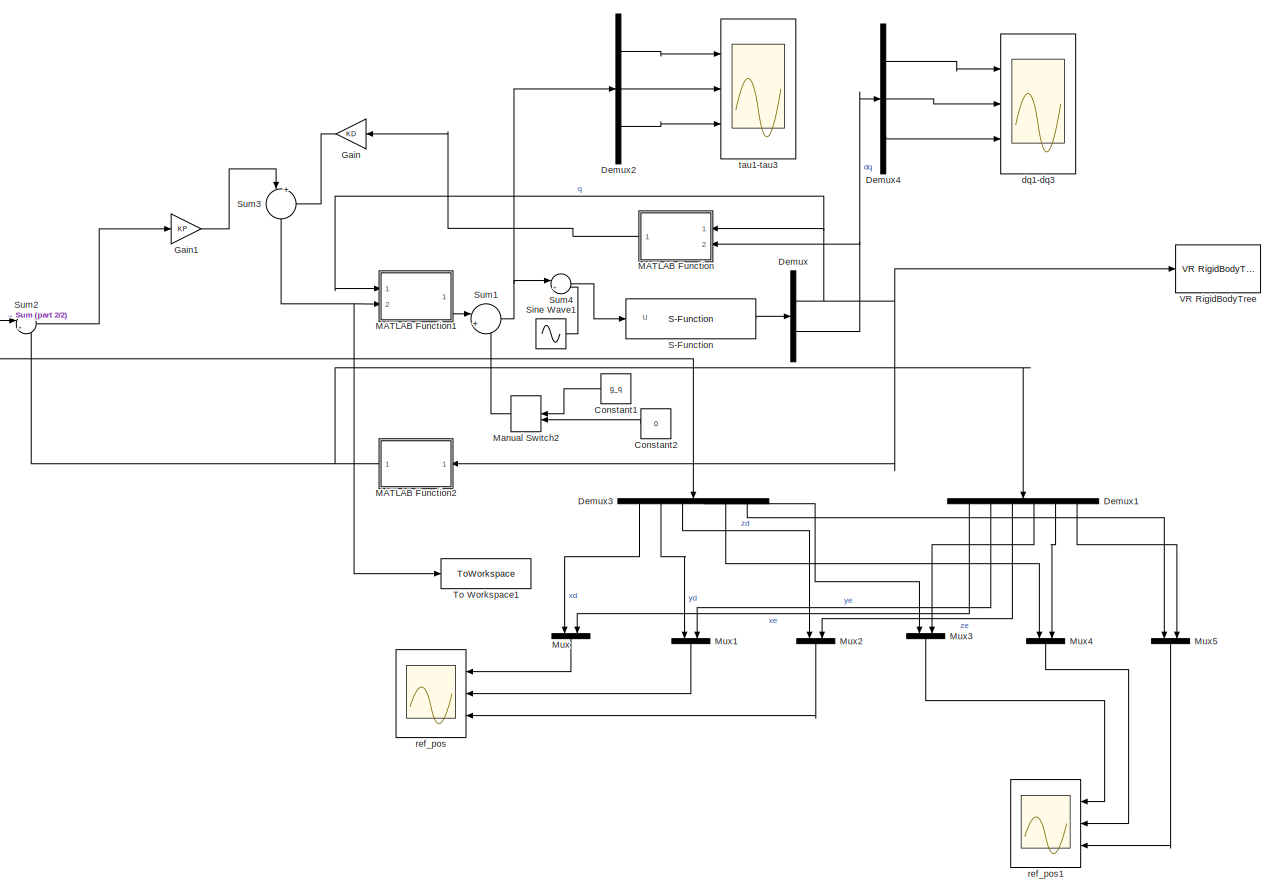
[diagram: root canvas - part 1/2, most of the canvas]
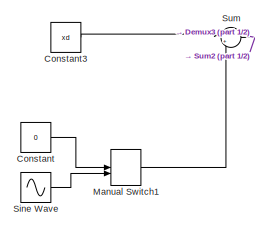
[diagram: root canvas - part 2/2, middle left region]
MODEL slx_3bf1c234223b
KIND model
CONFIG AbsTol = auto
CONFIG EnableMultiTasking = off
CONFIG FixedStep = auto
CONFIG MaxStep = auto
CONFIG MinStep = auto
CONFIG RelTol = 1e-3
CONFIG SampleTimeConstraint = Unconstrained
CONFIG SolverName = VariableStepAuto
CONFIG StartTime = 0.0
CONFIG StopTime = 10.0
BLOCK [Constant] Constant
  Value = 0
BLOCK [Constant] Constant1
  Value = g_q
BLOCK [Constant] Constant2
  Value = 0
BLOCK [Constant] Constant3
  Value = xd
BLOCK [Demux] Demux
  Outputs = 2
  Ports = [1, 2]
BLOCK [Demux] Demux1
  NameLocation = left
  Outputs = 6
  Ports = [1, 6]
BLOCK [Demux] Demux2
  Outputs = myRobot.N
  Ports = [1, 3]
BLOCK [Demux] Demux3
  NameLocation = left
  Outputs = 6
  Ports = [1, 6]
BLOCK [Demux] Demux4
  Outputs = myRobot.N
  Ports = [1, 3]
BLOCK [Gain] Gain
  Gain = KD
BLOCK [Gain] Gain1
  Gain = KP
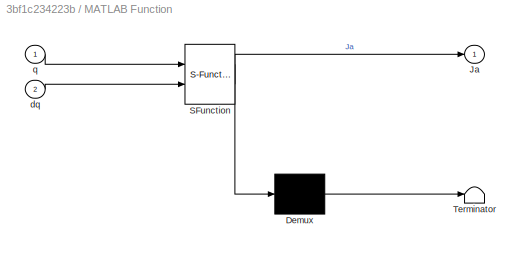
BLOCK [SubSystem] MATLAB Function
  ErrorFcn = Stateflow.Translate.translate
  PermitHierarchicalResolution = ExplicitOnly
  Ports = [2, 1]
  RequestExecContextInheritance = off
  SFBlockType = MATLAB Function
  TreatAsAtomicUnit = on
BLOCK [Demux] MATLAB Function/ Demux 
  Outputs = 1
  Ports = [1, 1]
BLOCK [S-Function] MATLAB Function/ SFunction 
  EnableBusSupport = on
  FunctionName = sf_sfun
  PortCounts = [2 2]
  Ports = [2, 2]
  SFcnIsStateOwnerBlock = off
  SFunctionDeploymentMode = off
  Tag = Stateflow S-Function 2
BLOCK [Terminator] MATLAB Function/ Terminator 
BLOCK [Outport] MATLAB Function/Ja
BLOCK [Inport] MATLAB Function/dq
  Port = 2
BLOCK [Inport] MATLAB Function/q
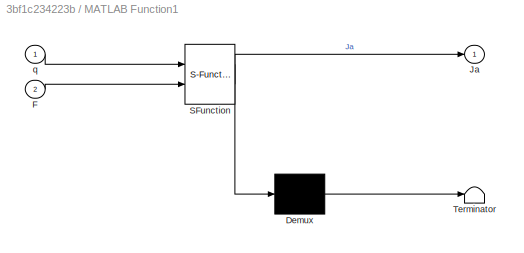
BLOCK [SubSystem] MATLAB Function1
  ErrorFcn = Stateflow.Translate.translate
  PermitHierarchicalResolution = ExplicitOnly
  Ports = [2, 1]
  RequestExecContextInheritance = off
  SFBlockType = MATLAB Function
  TreatAsAtomicUnit = on
BLOCK [Demux] MATLAB Function1/ Demux 
  Outputs = 1
  Ports = [1, 1]
BLOCK [S-Function] MATLAB Function1/ SFunction 
  EnableBusSupport = on
  FunctionName = sf_sfun
  PortCounts = [2 2]
  Ports = [2, 2]
  SFcnIsStateOwnerBlock = off
  SFunctionDeploymentMode = off
  Tag = Stateflow S-Function 1
BLOCK [Terminator] MATLAB Function1/ Terminator 
BLOCK [Inport] MATLAB Function1/F
  Port = 2
BLOCK [Outport] MATLAB Function1/Ja
BLOCK [Inport] MATLAB Function1/q
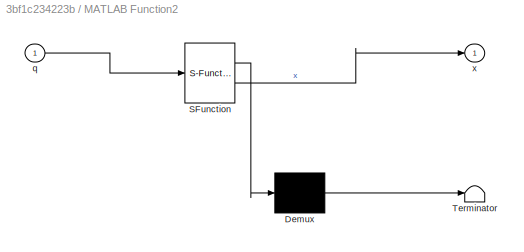
BLOCK [SubSystem] MATLAB Function2
  ErrorFcn = Stateflow.Translate.translate
  PermitHierarchicalResolution = ExplicitOnly
  Ports = [1, 1]
  RequestExecContextInheritance = off
  SFBlockType = MATLAB Function
  TreatAsAtomicUnit = on
BLOCK [Demux] MATLAB Function2/ Demux 
  Outputs = 1
  Ports = [1, 1]
BLOCK [S-Function] MATLAB Function2/ SFunction 
  EnableBusSupport = on
  FunctionName = sf_sfun
  PortCounts = [1 2]
  Ports = [1, 2]
  SFcnIsStateOwnerBlock = off
  SFunctionDeploymentMode = off
  Tag = Stateflow S-Function 3
BLOCK [Terminator] MATLAB Function2/ Terminator 
BLOCK [Inport] MATLAB Function2/q
BLOCK [Outport] MATLAB Function2/x
BLOCK [ManualSwitch] Manual Switch1
BLOCK [ManualSwitch] Manual Switch2
BLOCK [Mux] Mux
  DisplayOption = bar
  Inputs = 2
  NameLocation = left
  Ports = [2, 1]
BLOCK [Mux] Mux1
  DisplayOption = bar
  Inputs = 2
  NameLocation = left
  Ports = [2, 1]
BLOCK [Mux] Mux2
  DisplayOption = bar
  Inputs = 2
  NameLocation = left
  Ports = [2, 1]
BLOCK [Mux] Mux3
  Commented = on
  DisplayOption = bar
  Inputs = 2
  NameLocation = left
  Ports = [2, 1]
BLOCK [Mux] Mux4
  Commented = on
  DisplayOption = bar
  Inputs = 2
  NameLocation = left
  Ports = [2, 1]
BLOCK [Mux] Mux5
  Commented = on
  DisplayOption = bar
  Inputs = 2
  NameLocation = left
  Ports = [2, 1]
BLOCK [S-Function] S-Function
  EnableBusSupport = off
  FunctionName = fwd_dyn_joint_lagrangian
  Parameters = myRobot,qi,dqi
  Ports = [1, 1]
  SFcnIsStateOwnerBlock = off
  SFunctionDeploymentMode = off
BLOCK [Sin] Sine Wave
  Amplitude = 0.1
  Ports = [0, 1]
  SampleTime = 0
BLOCK [Sin] Sine Wave1
  Amplitude = 0.1
  Commented = on
  Frequency = 5
  Ports = [0, 1]
  SampleTime = 0
BLOCK [Sum] Sum
  Inputs = |++
  Ports = [2, 1]
BLOCK [Sum] Sum1
  Inputs = |++
  Ports = [2, 1]
BLOCK [Sum] Sum2
  Inputs = |+-
  Ports = [2, 1]
BLOCK [Sum] Sum3
  Inputs = |+-
  NameLocation = right
  Ports = [2, 1]
BLOCK [Sum] Sum4
  Inputs = |++
  Ports = [2, 1]
BLOCK [ToWorkspace] To Workspace1
  FixptAsFi = on
  MaxDataPoints = inf
  Ports = [1]
  SampleTime = -1
  SaveFormat = Timeseries
  VariableName = tau_noG
BLOCK [Reference] VR RigidBodyTree  REF=vrlib/VR RigidBodyTree
  Commented = on
  Ports = [1]
  SourceBlock = vrlib/VR RigidBodyTree
  SourceProductBaseCode = SL
  SourceType = VR RigidBodyTree
BLOCK [Scope] dq1-dq3
  Floating = off
  NumInputPorts = 3
  Ports = [3]
  ScopeSpecificationString = Simulink.scopes.TimeScopeBlockCfg('CurrentConfiguration', extmgr.ConfigurationSet(extmgr.Configuration('Core','General UI',true),extmgr.Configuration('Core','Source UI',true),extmgr.Configuration('Sources','WiredSimulink',true,'DataLoggingVariableName','ScopeData2'),extmgr.Configuration('Visuals','Time Domain',true,'SerializedDisplays',{struct('MinYLimReal','-0.9906','MaxYLimReal','1.97523','YLabe...<+2749ch>
BLOCK [Scope] ref_pos
  Floating = off
  NameLocation = top
  NumInputPorts = 3
  Ports = [3]
  ScopeSpecificationString = Simulink.scopes.TimeScopeBlockCfg('CurrentConfiguration', extmgr.ConfigurationSet(extmgr.Configuration('Core','General UI',true),extmgr.Configuration('Core','Source UI',true),extmgr.Configuration('Sources','WiredSimulink',true,'DataLoggingVariableName','ScopeData1'),extmgr.Configuration('Visuals','Time Domain',true,'SerializedDisplays',{struct('MinYLimReal','-0.15','MaxYLimReal','0.35','YLabelReal...<+3360ch>
BLOCK [Scope] ref_pos1
  Commented = on
  Floating = off
  NameLocation = top
  NumInputPorts = 3
  Ports = [3]
  ScopeSpecificationString = Simulink.scopes.TimeScopeBlockCfg('CurrentConfiguration', extmgr.ConfigurationSet(extmgr.Configuration('Core','General UI',true),extmgr.Configuration('Core','Source UI',true),extmgr.Configuration('Sources','WiredSimulink',true,'DataLoggingVariableName','ScopeData1'),extmgr.Configuration('Visuals','Time Domain',true,'SerializedDisplays',{struct('MinYLimReal','-1.00000','MaxYLimReal','1.00000','YLab...<+2827ch>
BLOCK [Scope] tau1-tau3
  Floating = off
  NumInputPorts = 3
  Ports = [3]
  ScopeSpecificationString = Simulink.scopes.TimeScopeBlockCfg('CurrentConfiguration', extmgr.ConfigurationSet(extmgr.Configuration('Core','General UI',true),extmgr.Configuration('Core','Source UI',true),extmgr.Configuration('Sources','WiredSimulink',true),extmgr.Configuration('Visuals','Time Domain',true,'SerializedDisplays',{struct('MinYLimReal','-16.88474','MaxYLimReal','112.98719','YLabelReal','','MinYLimMag','0.00000','M...<+2766ch>
ANNOTATION (root): u
LINE Constant1:1 -> Manual Switch2:1
LINE Constant2:1 -> Manual Switch2:2
LINE Constant3:1 -> Sum:1
LINE Constant:1 -> Manual Switch1:1
LINE Demux1:1 -> Mux:2
LINE Demux1:2 -> Mux1:2
LINE Demux1:3 -> Mux2:2
LINE Demux1:4 -> Mux3:2
LINE Demux1:5 -> Mux4:2
LINE Demux1:6 -> Mux5:2
LINE Demux2:1 -> tau1-tau3:1
LINE Demux2:2 -> tau1-tau3:2
LINE Demux2:3 -> tau1-tau3:3
LINE Demux3:1 -> Mux:1
LINE Demux3:2 -> Mux1:1
LINE Demux3:3 -> Mux2:1
LINE Demux3:4 -> Mux3:1
LINE Demux3:5 -> Mux4:1
LINE Demux3:6 -> Mux5:1
LINE Demux4:1 -> dq1-dq3:1
LINE Demux4:2 -> dq1-dq3:2
LINE Demux4:3 -> dq1-dq3:3
NET Demux:1 -> MATLAB Function1:1, MATLAB Function2:1, MATLAB Function:1, VR RigidBodyTree:1
NET Demux:2 -> Demux4:1, MATLAB Function:2
LINE Gain1:1 -> Sum3:1
LINE Gain:1 -> Sum3:2
LINE MATLAB Function1:1 -> Sum1:1
NET MATLAB Function2:1 -> Demux1:1, Sum2:2
LINE MATLAB Function:1 -> Gain:1
LINE Manual Switch1:1 -> Sum:2
LINE Manual Switch2:1 -> Sum1:2
LINE Mux1:1 -> ref_pos:2
LINE Mux2:1 -> ref_pos:3
LINE Mux3:1 -> ref_pos1:1
LINE Mux4:1 -> ref_pos1:2
LINE Mux5:1 -> ref_pos1:3
LINE Mux:1 -> ref_pos:1
LINE S-Function:1 -> Demux:1
LINE Sine Wave1:1 -> Sum4:2
LINE Sine Wave:1 -> Manual Switch1:2
NET Sum1:1 -> Demux2:1, Sum4:1
LINE Sum2:1 -> Gain1:1
NET Sum3:1 -> MATLAB Function1:2, To Workspace1:1
LINE Sum4:1 -> S-Function:1
NET Sum:1 -> Demux3:1, Sum2:1
note: NET lines group one-source signal fan-out (src -> all destinations, sorted); 1:1 wires keep LINE
CHART MATLAB Function states=1 transitions=1
  STATE_LABEL 'eML_blk_kernel()'
  STATE_LABEL 'SCRIPT:\nfunction Ja = fcn(q, dq)\n\nJa = getJa(q)*dq;\n'
CHART MATLAB Function2 states=1 transitions=1
  STATE_LABEL 'eML_blk_kernel()'
  STATE_LABEL 'SCRIPT:\nfunction x = fcn(q)\nx = getK(q);'
CHART MATLAB Function1 states=1 transitions=1
  STATE_LABEL 'eML_blk_kernel()'
  STATE_LABEL "SCRIPT:\nfunction Ja = fcn(q, F)\n\nJa = getJa(q)'*F;\n"
CHART  states=0 transitions=0
CHART  states=0 transitions=0
CHART  states=0 transitions=0
